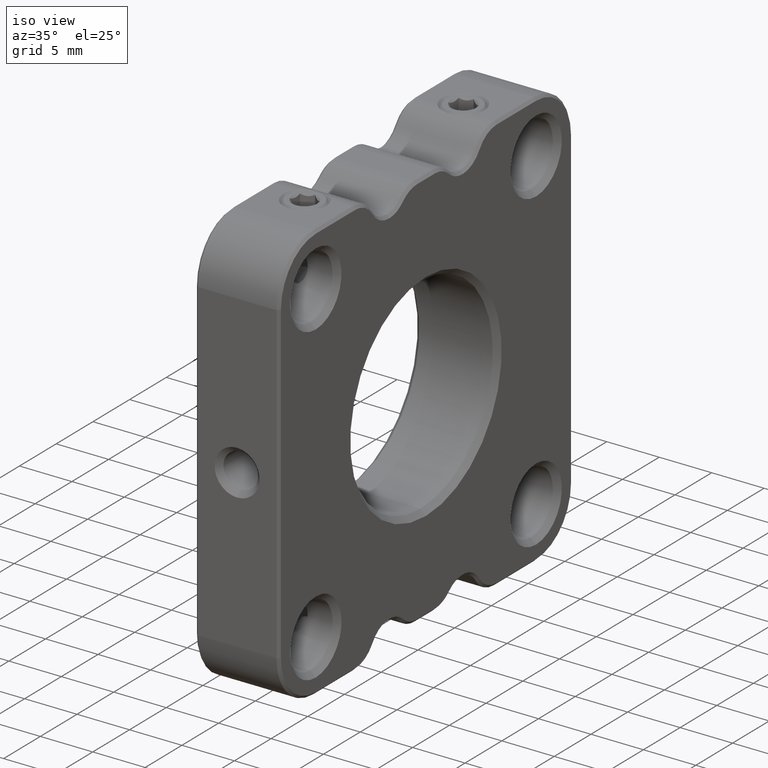
[diagram: clean part render]
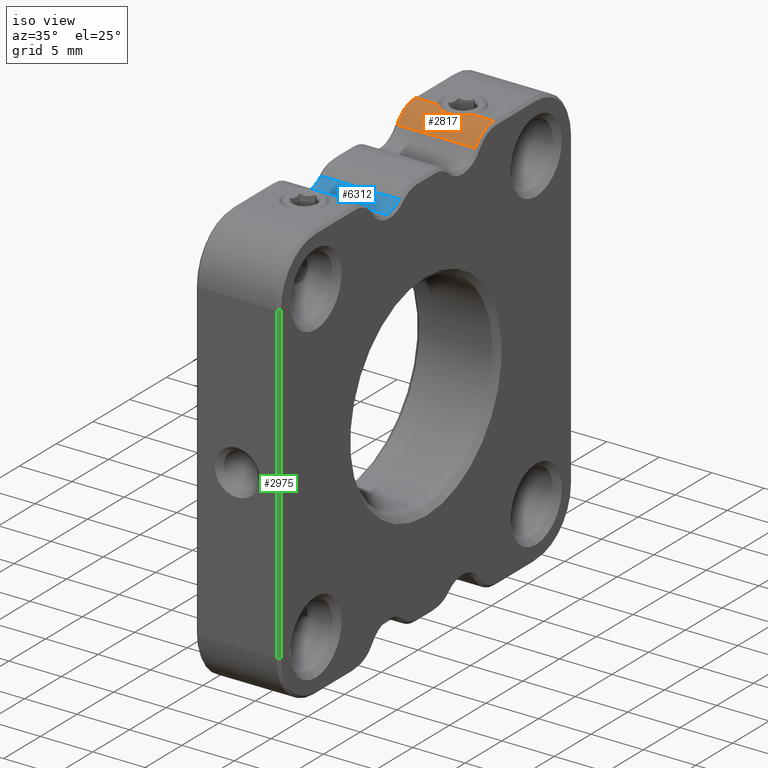
[diagram: same view with three faces highlighted in distinct colors, each labeled with its STEP entity id]
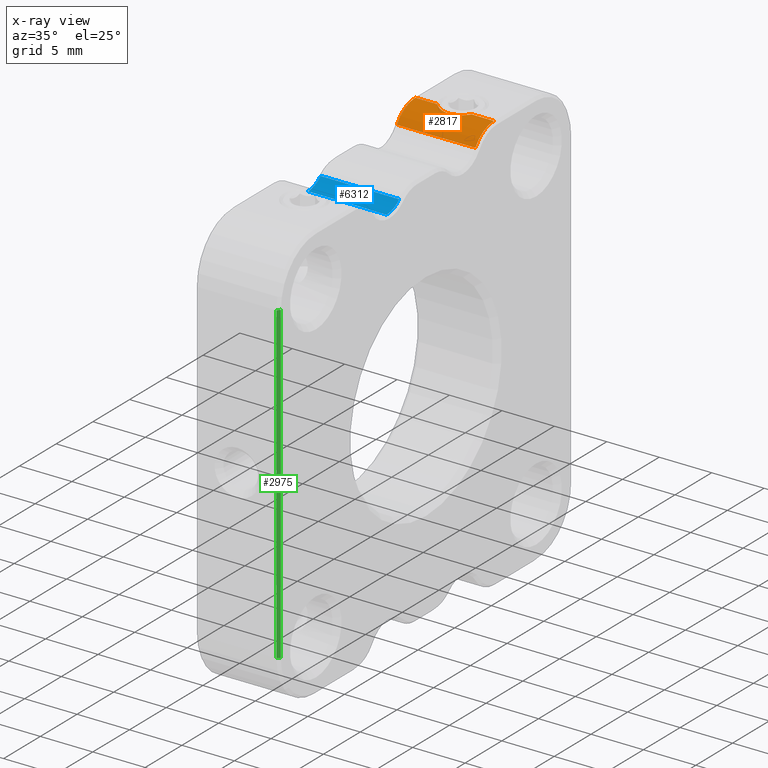
[diagram: x-ray of the same camera — body ghosted, the three highlighted faces saturated]
A machine part, iso view with three faces highlighted in distinct colors.
The next image is the same camera in x-ray (body ghosted, the three faces saturated) — at least one of them is partly hidden behind the body in this view.
Their STEP definitions:

[orange] entity #2817 — the highlighted cylindrical surface (partial cylindrical patch) has radius 3 mm, axis along (1, -0, -0).
#17 = DIRECTION ( 'NONE',  ( 0.000000000000000000, 0.000000000000000000, -1.000000000000000000 ) ) ;
#66 = AXIS2_PLACEMENT_3D ( 'NONE', #1845, #6146, #1818 ) ;
#290 = CARTESIAN_POINT ( 'NONE',  ( -15.32646240354596401, 11.05268557890351033, 59.92521603198721181 ) ) ;
#354 = CARTESIAN_POINT ( 'NONE',  ( -14.09599385918377301, 11.05191090448288094, 59.92503520379555937 ) ) ;
#485 = LINE ( 'NONE', #6994, #5866 ) ;
#504 = CIRCLE ( 'NONE', #5885, 3.000000000000002665 ) ;
#1007 = VERTEX_POINT ( 'NONE', #2624 ) ;
#1186 = CARTESIAN_POINT ( 'NONE',  ( -13.52540438358563080, 11.29469975887283439, 59.97131169391305860 ) ) ;
#1284 = CARTESIAN_POINT ( 'NONE',  ( -18.70960063692994879, 11.71907345205555373, 57.00000000000000711 ) ) ;
#1701 = VERTEX_POINT ( 'NONE', #3553 ) ;
#1732 = CARTESIAN_POINT ( 'NONE',  ( -16.25519939259869773, 11.59149351520070326, 60.00000000000002842 ) ) ;
#1760 = CARTESIAN_POINT ( 'NONE',  ( -15.47631926520279677, 11.09818157783049308, 59.93569531329769973 ) ) ;
#1818 = DIRECTION ( 'NONE',  ( 0.000000000000000000, 2.891205793294675861E-15, -1.000000000000000000 ) ) ;
#1839 = EDGE_CURVE ( 'NONE', #1701, #1007, #504, .T. ) ;
#1845 = CARTESIAN_POINT ( 'NONE',  ( -10.95960063692994879, 11.71907345205555373, 57.00000000000000711 ) ) ;
#1850 = CARTESIAN_POINT ( 'NONE',  ( -13.16381383513557957, 11.59175235090229172, 60.00000000000002842 ) ) ;
#1921 = CARTESIAN_POINT ( 'NONE',  ( -13.07131407704527781, 11.71907345205555373, 60.00000000000001421 ) ) ;
#1931 = CARTESIAN_POINT ( 'NONE',  ( -13.07131407704527781, 11.71907345205555373, 60.00000000000001421 ) ) ;
#2045 = EDGE_CURVE ( 'NONE', #4876, #7526, #5398, .T. ) ;
#2240 = CARTESIAN_POINT ( 'NONE',  ( -10.95960063692994879, 11.71907345205555373, 60.00000000000001421 ) ) ;
#2574 = EDGE_CURVE ( 'NONE', #4914, #7526, #9025, .T. ) ;
#2624 = CARTESIAN_POINT ( 'NONE',  ( -18.45960063692994879, 9.204652236430220569, 58.63636363636364734 ) ) ;
#2760 = B_SPLINE_CURVE_WITH_KNOTS ( 'NONE', 3,
 ( #4572, #1732, #6735, #8172, #4606, #1760, #290, #3218, #4627, #5321, #6794, #354, #6866, #8970, #1186, #6991, #1850, #1921 ),
 .UNSPECIFIED., .F., .F.,
 ( 4, 2, 2, 2, 2, 2, 2, 2, 4 ),
 ( 0.000000000000000000, 0.0004634413430038928500, 0.0009268826860077856999, 0.001390324029011687874, 0.001853765372015590265, 0.002317206715019492873, 0.002780648058023394830, 0.003244089401027297221, 0.003707530744031199612 ),
 .UNSPECIFIED. ) ;
#2817 = ADVANCED_FACE ( 'NONE', ( #5098 ), #5987, .T. ) ;
#2882 = VERTEX_POINT ( 'NONE', #8463 ) ;
#2917 = DIRECTION ( 'NONE',  ( 1.000000000000000000, 0.000000000000000000, 0.000000000000000000 ) ) ;
#3218 = CARTESIAN_POINT ( 'NONE',  ( -15.02091653549143047, 10.99236011125563195, 59.91081592540351153 ) ) ;
#3224 = CARTESIAN_POINT ( 'NONE',  ( -10.70960063692994879, 11.71907345205555373, 60.00000000000001421 ) ) ;
#3290 = EDGE_CURVE ( 'NONE', #2882, #4914, #2760, .T. ) ;
#3313 = DIRECTION ( 'NONE',  ( -1.000000000000000000, 0.000000000000000000, 0.000000000000000000 ) ) ;
#3337 = EDGE_LOOP ( 'NONE', ( #7325, #7726, #4479, #5244, #4219, #5537 ) ) ;
#3553 = CARTESIAN_POINT ( 'NONE',  ( -18.45960063692994879, 11.71907345205555373, 60.00000000000001421 ) ) ;
#4014 = CARTESIAN_POINT ( 'NONE',  ( -10.95960063692994879, 9.204652236430220569, 58.63636363636364734 ) ) ;
#4219 = ORIENTED_EDGE ( 'NONE', *, *, #2574, .F. ) ;
#4373 = EDGE_CURVE ( 'NONE', #4876, #1007, #485, .T. ) ;
#4479 = ORIENTED_EDGE ( 'NONE', *, *, #4373, .F. ) ;
#4572 = CARTESIAN_POINT ( 'NONE',  ( -16.34788719681462155, 11.71907345205555373, 60.00000000000001421 ) ) ;
#4606 = CARTESIAN_POINT ( 'NONE',  ( -15.76013614786308814, 11.21951912543953789, 59.95875973454352703 ) ) ;
#4627 = CARTESIAN_POINT ( 'NONE',  ( -14.86672559008516892, 10.97752138633206620, 59.90690566486419755 ) ) ;
#4876 = VERTEX_POINT ( 'NONE', #4014 ) ;
#4914 = VERTEX_POINT ( 'NONE', #1931 ) ;
#5037 = CARTESIAN_POINT ( 'NONE',  ( -18.45960063692994879, 11.71907345205555373, 57.00000000000000711 ) ) ;
#5098 = FACE_OUTER_BOUND ( 'NONE', #3337, .T. ) ;
#5244 = ORIENTED_EDGE ( 'NONE', *, *, #2045, .T. ) ;
#5321 = CARTESIAN_POINT ( 'NONE',  ( -14.55558521916232451, 10.97732188272009424, 59.90685476417150568 ) ) ;
#5398 = CIRCLE ( 'NONE', #66, 3.000000000000002665 ) ;
#5537 = ORIENTED_EDGE ( 'NONE', *, *, #3290, .F. ) ;
#5866 = VECTOR ( 'NONE', #3313, 1000.000000000000000 ) ;
#5885 = AXIS2_PLACEMENT_3D ( 'NONE', #5037, #2917, #17 ) ;
#5987 = CYLINDRICAL_SURFACE ( 'NONE', #7821, 3.000000000000002665 ) ;
#6039 = DIRECTION ( 'NONE',  ( 1.000000000000000000, -0.000000000000000000, 0.000000000000000000 ) ) ;
#6107 = VECTOR ( 'NONE', #6039, 1000.000000000000000 ) ;
#6146 = DIRECTION ( 'NONE',  ( -1.000000000000000000, 0.000000000000000000, 0.000000000000000000 ) ) ;
#6735 = CARTESIAN_POINT ( 'NONE',  ( -16.14491584480013486, 11.48350366055180061, 59.99220793610877678 ) ) ;
#6794 = CARTESIAN_POINT ( 'NONE',  ( -14.39890695641753027, 10.99237099008985119, 59.91081437747236293 ) ) ;
#6866 = CARTESIAN_POINT ( 'NONE',  ( -13.94798818592401801, 11.09627367145360211, 59.93530395768302554 ) ) ;
#6973 = DIRECTION ( 'NONE',  ( 0.000000000000000000, 0.000000000000000000, -1.000000000000000000 ) ) ;
#6991 = CARTESIAN_POINT ( 'NONE',  ( -13.27699944342497318, 11.48102333086177573, 59.99200908314960401 ) ) ;
#6994 = CARTESIAN_POINT ( 'NONE',  ( -18.70960063692994879, 9.204652236430220569, 58.63636363636364734 ) ) ;
#7261 = EDGE_CURVE ( 'NONE', #1701, #2882, #8254, .T. ) ;
#7325 = ORIENTED_EDGE ( 'NONE', *, *, #7261, .F. ) ;
#7526 = VERTEX_POINT ( 'NONE', #2240 ) ;
#7726 = ORIENTED_EDGE ( 'NONE', *, *, #1839, .T. ) ;
#7771 = DIRECTION ( 'NONE',  ( 1.000000000000000000, -0.000000000000000000, -0.000000000000000000 ) ) ;
#7821 = AXIS2_PLACEMENT_3D ( 'NONE', #1284, #7771, #6973 ) ;
#8125 = CARTESIAN_POINT ( 'NONE',  ( -10.70960063692994879, 11.71907345205555373, 60.00000000000001421 ) ) ;
#8154 = DIRECTION ( 'NONE',  ( 1.000000000000000000, -0.000000000000000000, 0.000000000000000000 ) ) ;
#8172 = CARTESIAN_POINT ( 'NONE',  ( -15.89744386862638592, 11.29700195264172713, 59.97164215695027423 ) ) ;
#8254 = LINE ( 'NONE', #3224, #6107 ) ;
#8370 = VECTOR ( 'NONE', #8154, 1000.000000000000000 ) ;
#8463 = CARTESIAN_POINT ( 'NONE',  ( -16.34788719681462155, 11.71907345205555373, 60.00000000000001421 ) ) ;
#8970 = CARTESIAN_POINT ( 'NONE',  ( -13.66013795731690728, 11.21879122406958196, 59.95864945254906075 ) ) ;
#9025 = LINE ( 'NONE', #8125, #8370 ) ;

[blue] entity #6312 — the highlighted cylindrical surface (edge-blend (fillet) strip) has radius 2.5 mm, axis along (1, -0, -0).
#473 = CARTESIAN_POINT ( 'NONE',  ( -18.45960063692994879, -1.174827314029355252, 58.18181818181819409 ) ) ;
#762 = ORIENTED_EDGE ( 'NONE', *, *, #5217, .T. ) ;
#1044 = VECTOR ( 'NONE', #5286, 1000.000000000000000 ) ;
#1741 = CYLINDRICAL_SURFACE ( 'NONE', #5489, 2.500000000000002220 ) ;
#2083 = ORIENTED_EDGE ( 'NONE', *, *, #8895, .T. ) ;
#2176 = DIRECTION ( 'NONE',  ( 1.000000000000000000, -0.000000000000000000, -0.000000000000000000 ) ) ;
#2271 = AXIS2_PLACEMENT_3D ( 'NONE', #7962, #3761, #4481 ) ;
#2459 = CARTESIAN_POINT ( 'NONE',  ( -10.95960063692994879, -2.890698776590892916, 60.00000000000001421 ) ) ;
#2621 = CARTESIAN_POINT ( 'NONE',  ( -18.70960063692994879, -2.890698776590892916, 57.50000000000000711 ) ) ;
#2752 = EDGE_CURVE ( 'NONE', #7070, #8163, #6333, .T. ) ;
#3126 = CARTESIAN_POINT ( 'NONE',  ( -18.70960063692994879, -1.174827314029355252, 58.18181818181819409 ) ) ;
#3675 = FACE_OUTER_BOUND ( 'NONE', #5222, .T. ) ;
#3761 = DIRECTION ( 'NONE',  ( -1.000000000000000000, -0.000000000000000000, -0.000000000000000000 ) ) ;
#4333 = DIRECTION ( 'NONE',  ( 0.000000000000000000, 0.000000000000000000, -1.000000000000000000 ) ) ;
#4411 = CARTESIAN_POINT ( 'NONE',  ( -18.45960063692994879, -2.890698776590892916, 57.50000000000000711 ) ) ;
#4481 = DIRECTION ( 'NONE',  ( 0.000000000000000000, 1.734723475976805517E-15, -1.000000000000000000 ) ) ;
#5008 = AXIS2_PLACEMENT_3D ( 'NONE', #2459, #8139, #8173 ) ;
#5217 = EDGE_CURVE ( 'NONE', #8163, #7137, #7209, .T. ) ;
#5222 = EDGE_LOOP ( 'NONE', ( #2083, #5473, #762, #9263 ) ) ;
#5278 = LINE ( 'NONE', #3126, #1044 ) ;
#5286 = DIRECTION ( 'NONE',  ( -1.000000000000000000, 0.000000000000000000, 0.000000000000000000 ) ) ;
#5473 = ORIENTED_EDGE ( 'NONE', *, *, #2752, .T. ) ;
#5489 = AXIS2_PLACEMENT_3D ( 'NONE', #8604, #2176, #4333 ) ;
#5661 = VERTEX_POINT ( 'NONE', #473 ) ;
#6312 = ADVANCED_FACE ( 'NONE', ( #3675 ), #1741, .F. ) ;
#6333 = LINE ( 'NONE', #2621, #9008 ) ;
#6584 = EDGE_CURVE ( 'NONE', #7137, #5661, #5278, .T. ) ;
#6934 = DIRECTION ( 'NONE',  ( 1.000000000000000000, -0.000000000000000000, -0.000000000000000000 ) ) ;
#7070 = VERTEX_POINT ( 'NONE', #4411 ) ;
#7137 = VERTEX_POINT ( 'NONE', #8011 ) ;
#7160 = CARTESIAN_POINT ( 'NONE',  ( -10.95960063692994879, -2.890698776590892916, 57.50000000000000711 ) ) ;
#7209 = CIRCLE ( 'NONE', #5008, 2.500000000000002220 ) ;
#7962 = CARTESIAN_POINT ( 'NONE',  ( -18.45960063692994879, -2.890698776590892916, 60.00000000000001421 ) ) ;
#8011 = CARTESIAN_POINT ( 'NONE',  ( -10.95960063692994879, -1.174827314029355252, 58.18181818181819409 ) ) ;
#8139 = DIRECTION ( 'NONE',  ( 1.000000000000000000, 0.000000000000000000, 0.000000000000000000 ) ) ;
#8163 = VERTEX_POINT ( 'NONE', #7160 ) ;
#8173 = DIRECTION ( 'NONE',  ( 0.000000000000000000, 0.000000000000000000, -1.000000000000000000 ) ) ;
#8604 = CARTESIAN_POINT ( 'NONE',  ( -18.70960063692994879, -2.890698776590892916, 60.00000000000001421 ) ) ;
#8846 = CIRCLE ( 'NONE', #2271, 2.500000000000002220 ) ;
#8895 = EDGE_CURVE ( 'NONE', #5661, #7070, #8846, .T. ) ;
#9008 = VECTOR ( 'NONE', #6934, 1000.000000000000000 ) ;
#9263 = ORIENTED_EDGE ( 'NONE', *, *, #6584, .T. ) ;

[green] entity #2975 — the highlighted planar face has unit normal (0.7071, -0.7071, -0).
#26 = EDGE_CURVE ( 'NONE', #996, #6600, #5541, .T. ) ;
#48 = DIRECTION ( 'NONE',  ( 0.7071067811865475727, -0.7071067811865475727, -0.000000000000000000 ) ) ;
#686 = CARTESIAN_POINT ( 'NONE',  ( -10.70960063692994879, -17.64069877659089158, 40.00000000000001421 ) ) ;
#752 = ORIENTED_EDGE ( 'NONE', *, *, #1966, .F. ) ;
#876 = EDGE_CURVE ( 'NONE', #2933, #5133, #7464, .T. ) ;
#996 = VERTEX_POINT ( 'NONE', #4846 ) ;
#1104 = DIRECTION ( 'NONE',  ( -0.7071067811865474617, -0.7071067811865474617, 0.000000000000000000 ) ) ;
#1835 = CARTESIAN_POINT ( 'NONE',  ( -10.70960063692994879, -17.64069877659089158, 55.00000000000000711 ) ) ;
#1966 = EDGE_CURVE ( 'NONE', #996, #5133, #7564, .T. ) ;
#2360 = CARTESIAN_POINT ( 'NONE',  ( -10.70960063692994879, -17.64069877659089869, 25.00000000000000355 ) ) ;
#2414 = DIRECTION ( 'NONE',  ( 0.000000000000000000, 0.000000000000000000, -1.000000000000000000 ) ) ;
#2441 = ORIENTED_EDGE ( 'NONE', *, *, #6549, .F. ) ;
#2933 = VERTEX_POINT ( 'NONE', #5645 ) ;
#2975 = ADVANCED_FACE ( 'NONE', ( #9114 ), #5747, .T. ) ;
#3124 = DIRECTION ( 'NONE',  ( 0.000000000000000000, 0.000000000000000000, 1.000000000000000000 ) ) ;
#3189 = CARTESIAN_POINT ( 'NONE',  ( -10.70960063692994879, -17.64069877659089158, 25.00000000000000355 ) ) ;
#3948 = AXIS2_PLACEMENT_3D ( 'NONE', #686, #48, #4974 ) ;
#4225 = VECTOR ( 'NONE', #5803, 1000.000000000000114 ) ;
#4381 = EDGE_LOOP ( 'NONE', ( #4482, #752, #8935, #2441 ) ) ;
#4482 = ORIENTED_EDGE ( 'NONE', *, *, #876, .T. ) ;
#4846 = CARTESIAN_POINT ( 'NONE',  ( -10.95960063692994879, -17.89069877659089158, 25.00000000000000355 ) ) ;
#4974 = DIRECTION ( 'NONE',  ( 0.000000000000000000, -0.000000000000000000, 1.000000000000000000 ) ) ;
#5133 = VERTEX_POINT ( 'NONE', #5174 ) ;
#5174 = CARTESIAN_POINT ( 'NONE',  ( -10.95960063692994879, -17.89069877659089158, 55.00000000000000711 ) ) ;
#5408 = VECTOR ( 'NONE', #2414, 1000.000000000000000 ) ;
#5541 = LINE ( 'NONE', #5833, #4225 ) ;
#5645 = CARTESIAN_POINT ( 'NONE',  ( -10.70960063692994879, -17.64069877659089158, 55.00000000000000711 ) ) ;
#5747 = PLANE ( 'NONE',  #3948 ) ;
#5803 = DIRECTION ( 'NONE',  ( 0.7071067811865474617, 0.7071067811865474617, 0.000000000000000000 ) ) ;
#5833 = CARTESIAN_POINT ( 'NONE',  ( -10.95960063692994879, -17.89069877659089869, 25.00000000000000355 ) ) ;
#6549 = EDGE_CURVE ( 'NONE', #2933, #6600, #7360, .T. ) ;
#6600 = VERTEX_POINT ( 'NONE', #2360 ) ;
#7246 = VECTOR ( 'NONE', #1104, 1000.000000000000114 ) ;
#7360 = LINE ( 'NONE', #3189, #5408 ) ;
#7464 = LINE ( 'NONE', #1835, #7246 ) ;
#7564 = LINE ( 'NONE', #8077, #7661 ) ;
#7661 = VECTOR ( 'NONE', #3124, 1000.000000000000000 ) ;
#8077 = CARTESIAN_POINT ( 'NONE',  ( -10.95960063692994879, -17.89069877659089158, 55.00000000000000711 ) ) ;
#8935 = ORIENTED_EDGE ( 'NONE', *, *, #26, .T. ) ;
#9114 = FACE_OUTER_BOUND ( 'NONE', #4381, .T. ) ;